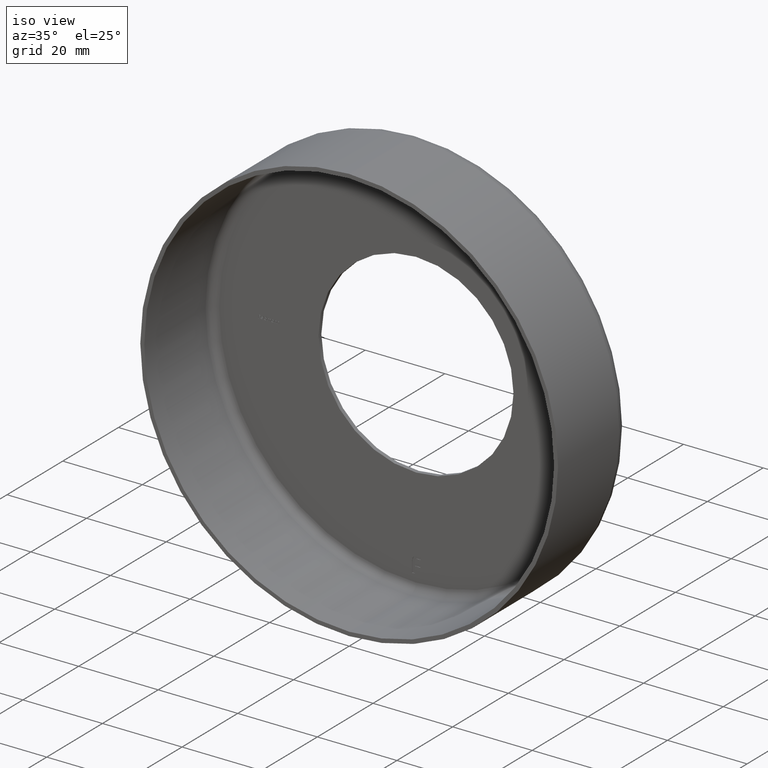
[diagram: clean part render]
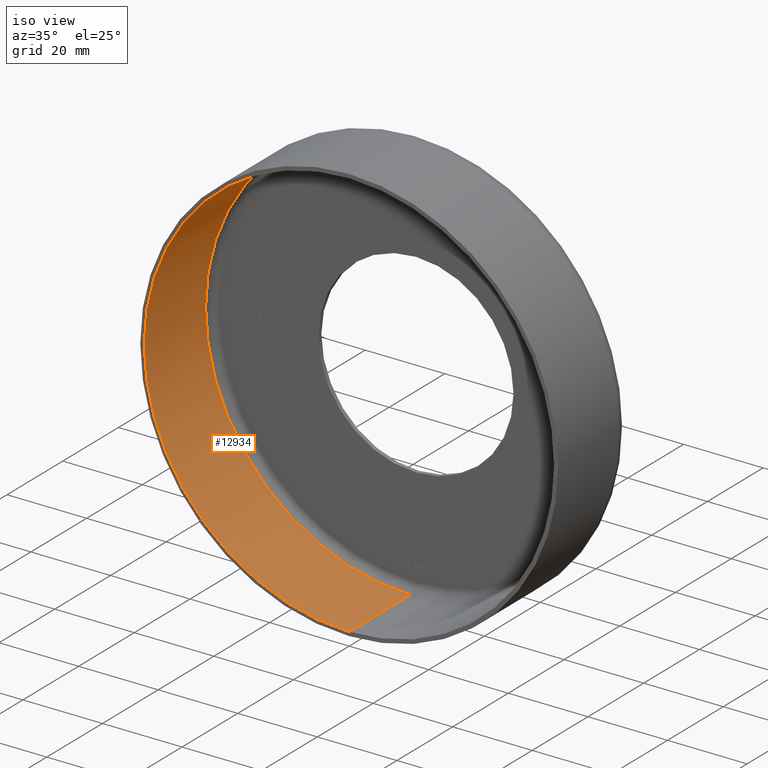
[diagram: same view with one face highlighted and labeled with its STEP entity id]
A machine part, iso view. The second image highlights one B-rep face of the part: STEP entity #12934.
In plain terms, the highlighted cylindrical surface (partial cylindrical patch) has radius 51.5 mm, axis along (-0, -1, -0).
Its self-contained STEP definition (entity closure, byte-faithful):
#37 = CARTESIAN_POINT ( 'NONE',  ( 6.306931015608869596E-15, 0.000000000000000000, 51.50000000000000711 ) ) ;
#87 = DIRECTION ( 'NONE',  ( -0.000000000000000000, -1.000000000000000000, -0.000000000000000000 ) ) ;
#618 = AXIS2_PLACEMENT_3D ( 'NONE', #5010, #12750, #8243 ) ;
#796 = DIRECTION ( 'NONE',  ( -0.000000000000000000, -1.000000000000000000, -0.000000000000000000 ) ) ;
#893 = EDGE_LOOP ( 'NONE', ( #13436, #3777, #5988, #6342 ) ) ;
#956 = LINE ( 'NONE', #12277, #6565 ) ;
#2262 = EDGE_CURVE ( 'NONE', #14282, #2851, #10326, .T. ) ;
#2485 = VERTEX_POINT ( 'NONE', #9338 ) ;
#2851 = VERTEX_POINT ( 'NONE', #11965 ) ;
#3036 = AXIS2_PLACEMENT_3D ( 'NONE', #12188, #796, #5450 ) ;
#3777 = ORIENTED_EDGE ( 'NONE', *, *, #11959, .T. ) ;
#4140 = VERTEX_POINT ( 'NONE', #13380 ) ;
#5010 = CARTESIAN_POINT ( 'NONE',  ( 0.000000000000000000, -1.224646799147353207E-16, 0.000000000000000000 ) ) ;
#5450 = DIRECTION ( 'NONE',  ( 0.000000000000000000, 0.000000000000000000, -1.000000000000000000 ) ) ;
#5542 = CARTESIAN_POINT ( 'NONE',  ( 6.306931015608869596E-15, 22.00000000000000355, 51.50000000000000711 ) ) ;
#5988 = ORIENTED_EDGE ( 'NONE', *, *, #6860, .T. ) ;
#6342 = ORIENTED_EDGE ( 'NONE', *, *, #13564, .F. ) ;
#6565 = VECTOR ( 'NONE', #87, 1000.000000000000000 ) ;
#6860 = EDGE_CURVE ( 'NONE', #4140, #2485, #12386, .T. ) ;
#7035 = CYLINDRICAL_SURFACE ( 'NONE', #13831, 51.50000000000000711 ) ;
#8174 = DIRECTION ( 'NONE',  ( -0.000000000000000000, -1.000000000000000000, -0.000000000000000000 ) ) ;
#8243 = DIRECTION ( 'NONE',  ( 0.000000000000000000, 0.000000000000000000, -1.000000000000000000 ) ) ;
#8768 = FACE_OUTER_BOUND ( 'NONE', #893, .T. ) ;
#9338 = CARTESIAN_POINT ( 'NONE',  ( 0.000000000000000000, -1.224646799147353207E-16, -51.50000000000000711 ) ) ;
#9494 = CARTESIAN_POINT ( 'NONE',  ( 0.000000000000000000, 0.000000000000000000, 0.000000000000000000 ) ) ;
#10326 = CIRCLE ( 'NONE', #3036, 51.50000000000000711 ) ;
#10560 = DIRECTION ( 'NONE',  ( 0.000000000000000000, 0.000000000000000000, -1.000000000000000000 ) ) ;
#11959 = EDGE_CURVE ( 'NONE', #14282, #4140, #14586, .T. ) ;
#11965 = CARTESIAN_POINT ( 'NONE',  ( 0.000000000000000000, 22.00000000000000355, -51.50000000000000711 ) ) ;
#12188 = CARTESIAN_POINT ( 'NONE',  ( 0.000000000000000000, 22.00000000000000355, 0.000000000000000000 ) ) ;
#12277 = CARTESIAN_POINT ( 'NONE',  ( 0.000000000000000000, 0.000000000000000000, -51.50000000000000711 ) ) ;
#12386 = CIRCLE ( 'NONE', #618, 51.50000000000000711 ) ;
#12750 = DIRECTION ( 'NONE',  ( -0.000000000000000000, -1.000000000000000000, -0.000000000000000000 ) ) ;
#12934 = ADVANCED_FACE ( 'NONE', ( #8768 ), #7035, .F. ) ;
#13001 = VECTOR ( 'NONE', #13459, 1000.000000000000000 ) ;
#13380 = CARTESIAN_POINT ( 'NONE',  ( 6.306931015608869596E-15, -1.224646799147353207E-16, 51.50000000000000711 ) ) ;
#13436 = ORIENTED_EDGE ( 'NONE', *, *, #2262, .F. ) ;
#13459 = DIRECTION ( 'NONE',  ( -0.000000000000000000, -1.000000000000000000, -0.000000000000000000 ) ) ;
#13564 = EDGE_CURVE ( 'NONE', #2851, #2485, #956, .T. ) ;
#13831 = AXIS2_PLACEMENT_3D ( 'NONE', #9494, #8174, #10560 ) ;
#14282 = VERTEX_POINT ( 'NONE', #5542 ) ;
#14586 = LINE ( 'NONE', #37, #13001 ) ;